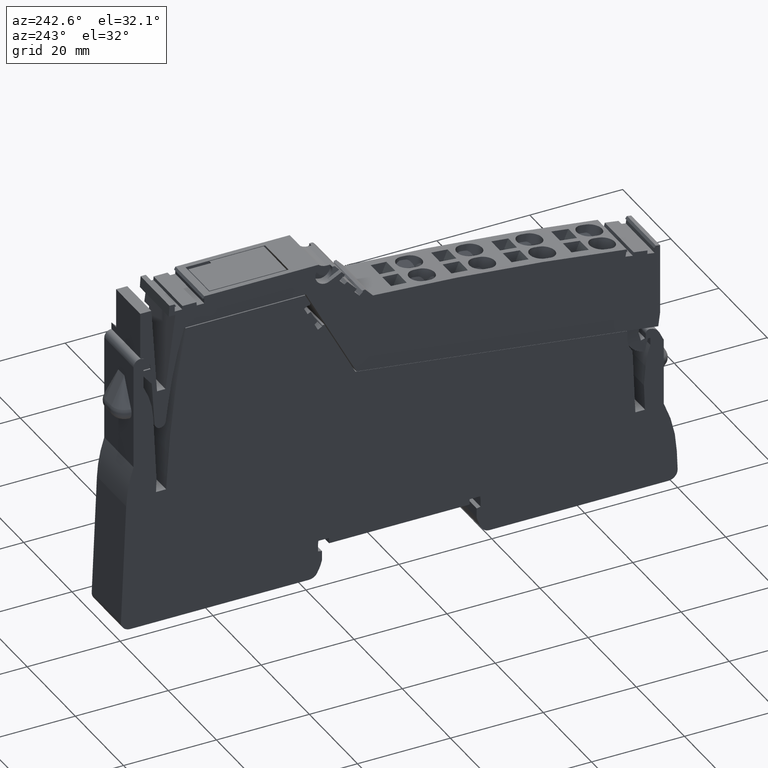
[diagram: clean part render]
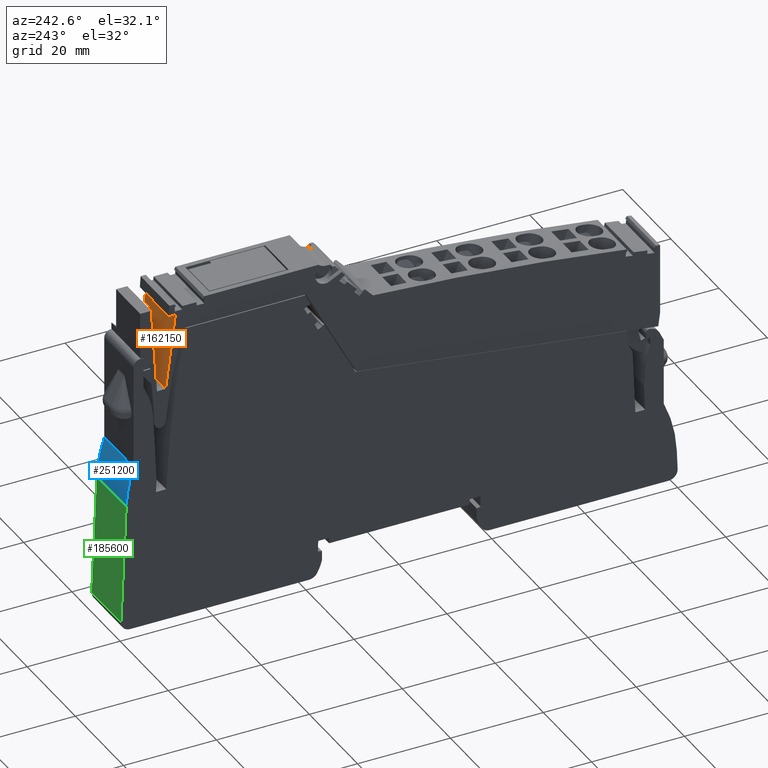
[diagram: same view with three faces highlighted in distinct colors, each labeled with its STEP entity id]
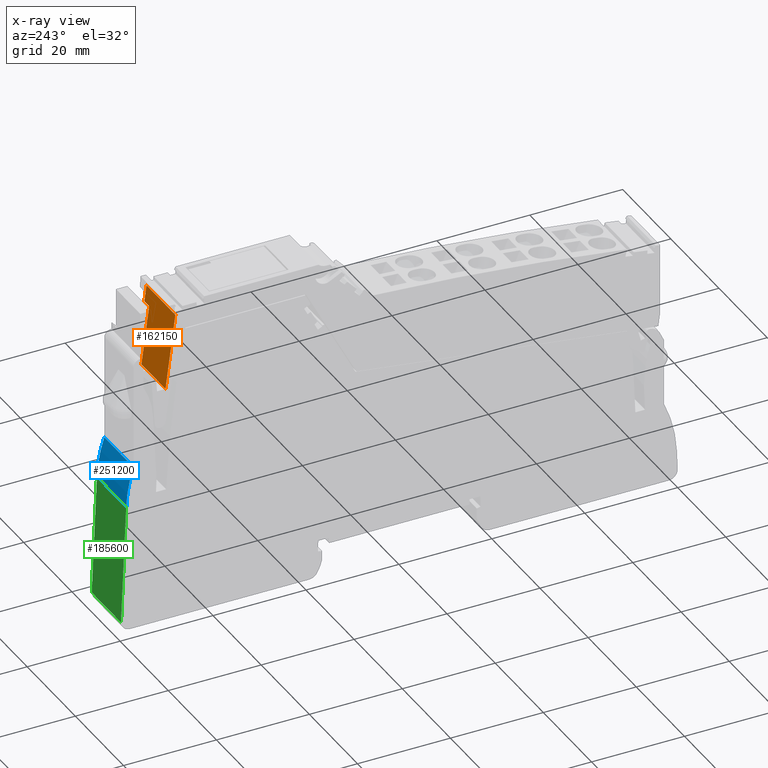
[diagram: x-ray of the same camera — body ghosted, the three highlighted faces saturated]
A machine part, auxiliary view with three faces highlighted in distinct colors.
The next image is the same camera in x-ray (body ghosted, the three faces saturated) — at least one of them is partly hidden behind the body in this view.
Their STEP definitions:

[orange] entity #162150 — the highlighted planar face has unit normal (-0, -0.9914, -0.1305).
#1490=CARTESIAN_POINT('',(117.512908656979,82.0866197234256,-35.425));
#1500=VERTEX_POINT('',#1490);
#1530=CARTESIAN_POINT('',(128.319817162075,-2.8421709430404E-14,-35.425)
);
#1540=DIRECTION('',(0.130526192220052,-0.99144486137381,0.));
#1550=VECTOR('',#1540,1.);
#1560=LINE('',#1530,#1550);
#1570=CARTESIAN_POINT('',(117.973692398535,78.5866197234246,-35.425));
#1580=VERTEX_POINT('',#1570);
#1590=EDGE_CURVE('',#1500,#1580,#1560,.T.);
#7780=CARTESIAN_POINT('',(119.632513868136,65.9866197234248,-47.425));
#7790=VERTEX_POINT('',#7780);
#7820=CARTESIAN_POINT('',(128.319817162075,-2.8421709430404E-14,-47.425)
);
#7830=DIRECTION('',(0.130526192220052,-0.99144486137381,0.));
#7840=VECTOR('',#7830,1.);
#7850=LINE('',#7820,#7840);
#7860=CARTESIAN_POINT('',(117.512908656979,82.0866197234256,-47.425));
#7870=VERTEX_POINT('',#7860);
#7880=EDGE_CURVE('',#7870,#7790,#7850,.T.);
#13390=CARTESIAN_POINT('',(117.512908656979,82.0866197234256,0.));
#13400=DIRECTION('',(-8.85927774418128E-33,0.,1.));
#13410=VECTOR('',#13400,1.);
#13420=LINE('',#13390,#13410);
#13430=EDGE_CURVE('',#7870,#1500,#13420,.T.);
#13660=CARTESIAN_POINT('',(119.632513868136,65.9866197234249,-37.425));
#13670=VERTEX_POINT('',#13660);
#13720=CARTESIAN_POINT('',(119.632513868136,65.9866197234248,0.));
#13730=DIRECTION('',(-8.85927774418128E-33,6.90131940202395E-49,1.));
#13740=VECTOR('',#13730,1.);
#13750=LINE('',#13720,#13740);
#13760=EDGE_CURVE('',#7790,#13670,#13750,.T.);
#153900=CARTESIAN_POINT('',(117.973692398535,78.5866197234246,-37.425));
#153910=VERTEX_POINT('',#153900);
#153940=CARTESIAN_POINT('',(118.59066468609,73.900249932795,-37.425));
#153950=DIRECTION('',(-0.130526192220052,0.99144486137381,0.));
#153960=VECTOR('',#153950,1.);
#153970=LINE('',#153940,#153960);
#153980=EDGE_CURVE('',#13670,#153910,#153970,.T.);
#157510=CARTESIAN_POINT('',(117.973692398535,78.5866197234246,0.));
#157520=DIRECTION('',(8.85927774418128E-33,0.,-1.));
#157530=VECTOR('',#157520,1.);
#157540=LINE('',#157510,#157530);
#157550=EDGE_CURVE('',#1580,#153910,#157540,.T.);
#162020=CARTESIAN_POINT('',(117.512908656979,82.0866197234256,-35.425));
#162030=DIRECTION('',(-0.99144486137381,-0.130526192220052,
-8.7834853949519E-33));
#162040=DIRECTION('',(-0.130526192220052,0.99144486137381,0.));
#162050=AXIS2_PLACEMENT_3D('',#162020,#162030,#162040);
#162060=PLANE('',#162050);
#162070=ORIENTED_EDGE('',*,*,#153980,.F.);
#162080=ORIENTED_EDGE('',*,*,#157550,.T.);
#162090=ORIENTED_EDGE('',*,*,#1590,.T.);
#162100=ORIENTED_EDGE('',*,*,#13430,.T.);
#162110=ORIENTED_EDGE('',*,*,#7880,.F.);
#162120=ORIENTED_EDGE('',*,*,#13760,.F.);
#162130=EDGE_LOOP('',(#162120,#162110,#162100,#162090,#162080,#162070));
#162140=FACE_OUTER_BOUND('',#162130,.T.);
#162150=ADVANCED_FACE('',(#162140),#162060,.F.);

[blue] entity #251200 — the highlighted cylindrical surface (partial cylindrical patch) has radius 30 mm, axis along (1, -0, 0).
#176060=CARTESIAN_POINT('',(293.728620208859,-26.6633289582232,36.45));
#176070=VERTEX_POINT('',#176060);
#176100=CARTESIAN_POINT('',(265.338905386229,-36.3599310584282,36.45));
#176110=DIRECTION('',(0.,1.19110369467609E-44,1.));
#176120=DIRECTION('',(1.,0.,0.));
#176130=AXIS2_PLACEMENT_3D('',#176100,#176110,#176120);
#176140=CIRCLE('',#176130,29.9999999999995);
#176150=CARTESIAN_POINT('',(295.310352033684,-35.0513494374681,36.45));
#176160=VERTEX_POINT('',#176150);
#176170=EDGE_CURVE('',#176160,#176070,#176140,.T.);
#179710=CARTESIAN_POINT('',(295.310352033684,-35.0513494374681,24.3));
#179720=VERTEX_POINT('',#179710);
#179750=CARTESIAN_POINT('',(265.338905386229,-36.3599310584282,24.3));
#179760=DIRECTION('',(0.,1.19110369467609E-44,1.));
#179770=DIRECTION('',(1.,0.,0.));
#179780=AXIS2_PLACEMENT_3D('',#179750,#179760,#179770);
#179790=CIRCLE('',#179780,29.9999999999995);
#179800=CARTESIAN_POINT('',(293.728620208859,-26.6633289582232,24.3));
#179810=VERTEX_POINT('',#179800);
#179820=EDGE_CURVE('',#179720,#179810,#179790,.T.);
#185440=CARTESIAN_POINT('',(295.310352033684,-35.0513494374681,24.3));
#185450=DIRECTION('',(0.,1.19110369467609E-44,1.));
#185460=VECTOR('',#185450,1.);
#185470=LINE('',#185440,#185460);
#185480=EDGE_CURVE('',#179720,#176160,#185470,.T.);
#251040=CARTESIAN_POINT('',(265.338905386229,-36.3599310584282,24.3));
#251050=DIRECTION('',(0.,1.19110369467609E-44,1.));
#251060=DIRECTION('',(1.,0.,0.));
#251070=AXIS2_PLACEMENT_3D('',#251040,#251050,#251060);
#251080=CYLINDRICAL_SURFACE('',#251070,29.9999999999995);
#251090=CARTESIAN_POINT('',(293.728620208859,-26.6633289582232,24.3));
#251100=DIRECTION('',(0.,1.19110369467609E-44,1.));
#251110=VECTOR('',#251100,1.);
#251120=LINE('',#251090,#251110);
#251130=EDGE_CURVE('',#179810,#176070,#251120,.T.);
#251140=ORIENTED_EDGE('',*,*,#251130,.T.);
#251150=ORIENTED_EDGE('',*,*,#179820,.T.);
#251160=ORIENTED_EDGE('',*,*,#185480,.F.);
#251170=ORIENTED_EDGE('',*,*,#176170,.F.);
#251180=EDGE_LOOP('',(#251170,#251160,#251150,#251140));
#251190=FACE_OUTER_BOUND('',#251180,.T.);
#251200=ADVANCED_FACE('',(#251190),#251080,.T.);

[green] entity #185600 — the highlighted planar face has unit normal (0, -0.999, -0.0436).
#176150=CARTESIAN_POINT('',(295.310352033684,-35.0513494374681,36.45));
#176160=VERTEX_POINT('',#176150);
#176190=CARTESIAN_POINT('',(296.504588542813,-62.4038624519237,36.45));
#176200=DIRECTION('',(-0.0436193873653358,0.999048221581858,
-1.18997002788573E-44));
#176210=VECTOR('',#176200,1.);
#176220=LINE('',#176190,#176210);
#176230=CARTESIAN_POINT('',(296.437489395879,-60.8670393220619,36.45));
#176240=VERTEX_POINT('',#176230);
#176250=EDGE_CURVE('',#176240,#176160,#176220,.T.);
#179650=CARTESIAN_POINT('',(293.779977067029,1.32160948851379E-12,24.3))
;
#179660=DIRECTION('',(-0.0436193873653358,0.999048221581858,
-1.18997002788573E-44));
#179670=VECTOR('',#179660,1.);
#179680=LINE('',#179650,#179670);
#179690=CARTESIAN_POINT('',(296.437489395879,-60.8670393220619,24.3));
#179700=VERTEX_POINT('',#179690);
#179710=CARTESIAN_POINT('',(295.310352033684,-35.0513494374681,24.3));
#179720=VERTEX_POINT('',#179710);
#179730=EDGE_CURVE('',#179700,#179720,#179680,.T.);
#185390=CARTESIAN_POINT('',(296.437489395879,-60.8670393220619,24.3));
#185400=DIRECTION('',(-0.999048221581858,-0.0436193873653358,
5.19552134503593E-46));
#185410=DIRECTION('',(0.0436193873653358,-0.999048221581858,
1.18997002788573E-44));
#185420=AXIS2_PLACEMENT_3D('',#185390,#185400,#185410);
#185430=PLANE('',#185420);
#185440=CARTESIAN_POINT('',(295.310352033684,-35.0513494374681,24.3));
#185450=DIRECTION('',(0.,1.19110369467609E-44,1.));
#185460=VECTOR('',#185450,1.);
#185470=LINE('',#185440,#185460);
#185480=EDGE_CURVE('',#179720,#176160,#185470,.T.);
#185490=ORIENTED_EDGE('',*,*,#185480,.T.);
#185500=ORIENTED_EDGE('',*,*,#179730,.T.);
#185510=CARTESIAN_POINT('',(296.437489395879,-60.8670393220619,24.3));
#185520=DIRECTION('',(0.,1.19110369467609E-44,1.));
#185530=VECTOR('',#185520,1.);
#185540=LINE('',#185510,#185530);
#185550=EDGE_CURVE('',#179700,#176240,#185540,.T.);
#185560=ORIENTED_EDGE('',*,*,#185550,.F.);
#185570=ORIENTED_EDGE('',*,*,#176250,.F.);
#185580=EDGE_LOOP('',(#185570,#185560,#185500,#185490));
#185590=FACE_OUTER_BOUND('',#185580,.T.);
#185600=ADVANCED_FACE('',(#185590),#185430,.F.);